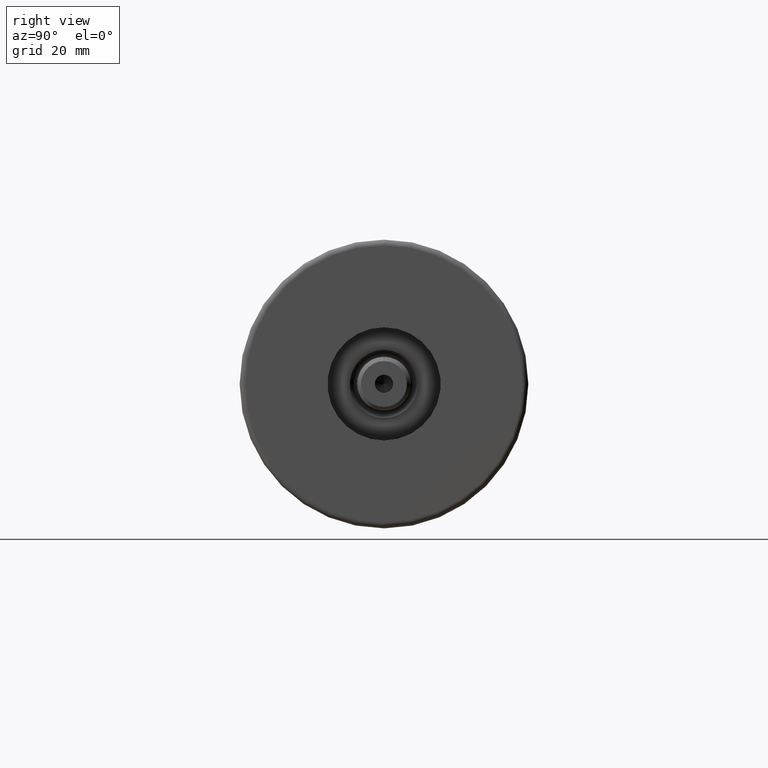
[diagram: clean part render]
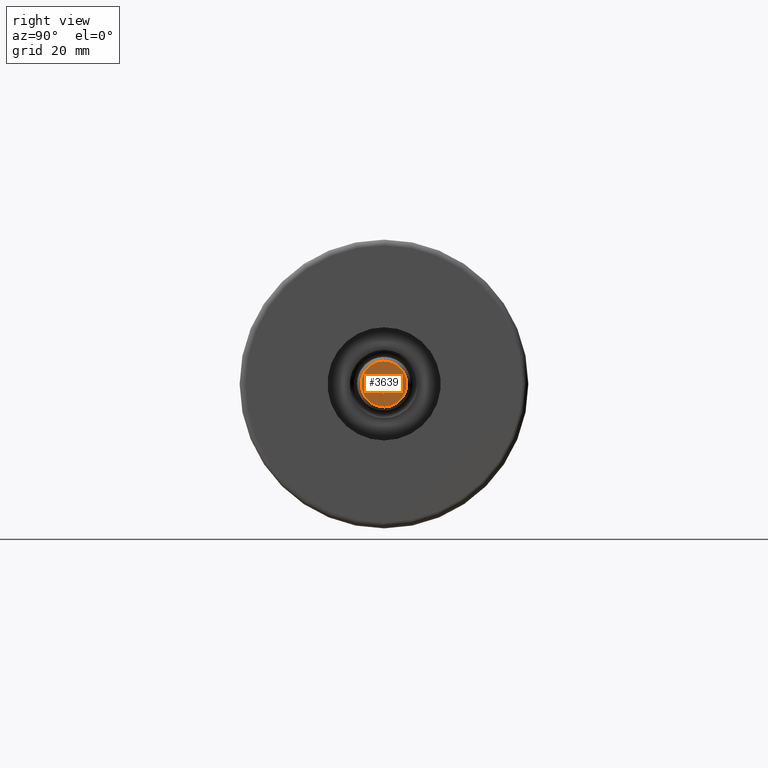
[diagram: same view with one face highlighted and labeled with its STEP entity id]
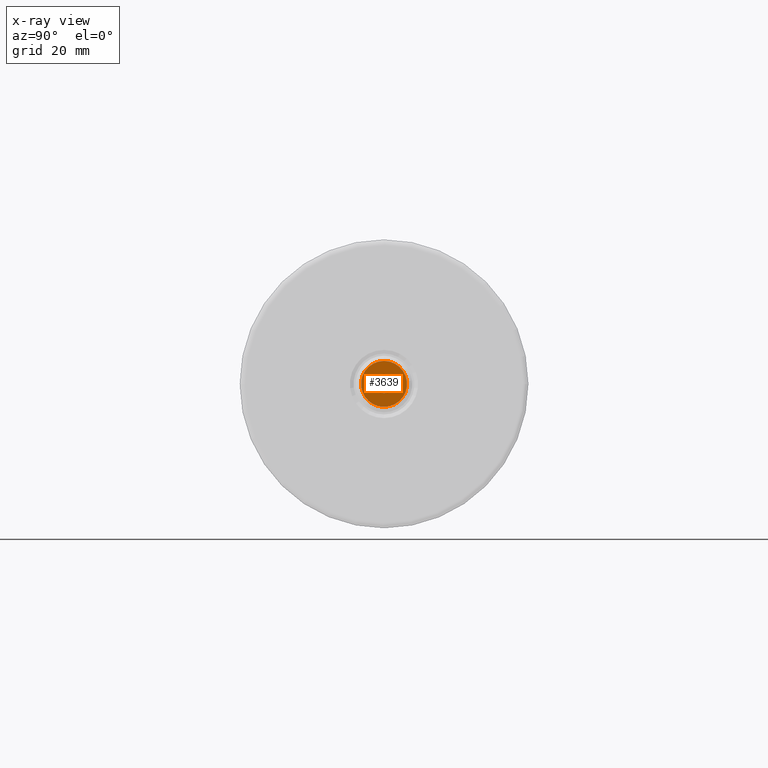
[diagram: x-ray of the same camera — body ghosted, the highlighted face saturated]
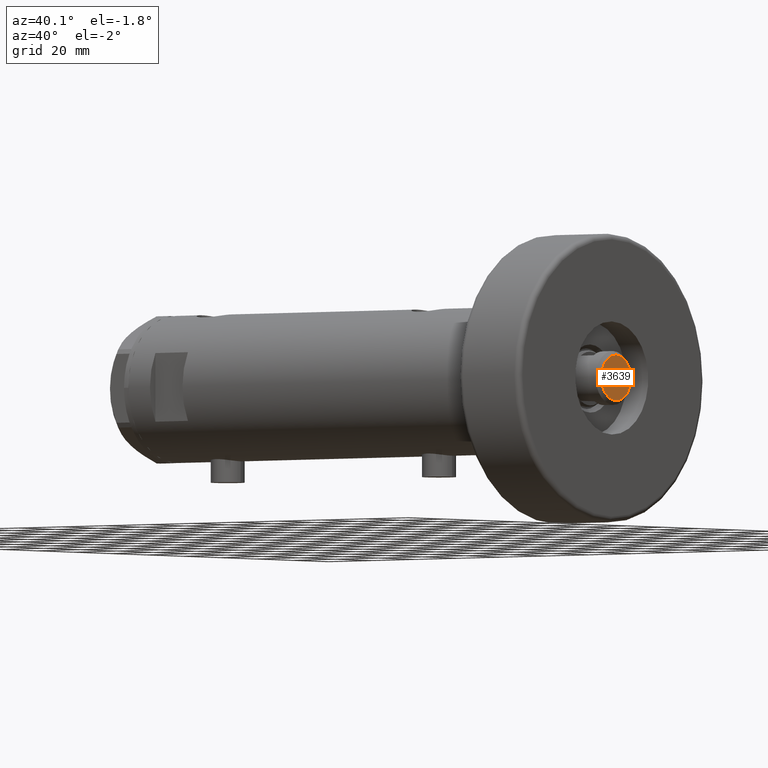
[diagram: same view with one face highlighted and labeled with its STEP entity id]
A machine part, right view. The second image highlights one B-rep face of the part: STEP entity #3639.
The next image is the same camera in x-ray: the body ghosted, the highlighted face saturated — about 0% of this face is hidden behind the body in this view.
A second angle (auxiliary view) of the same face is appended — the face is thin or edge-on in the first view.
In plain terms, the highlighted planar face has unit normal (1, 0, -0).
Its self-contained STEP definition (entity closure, byte-faithful):
#1 = VERTEX_POINT ( 'NONE', #453 ) ;
#284 = AXIS2_PLACEMENT_3D ( 'NONE', #3216, #1240, #867 ) ;
#453 = CARTESIAN_POINT ( 'NONE',  ( 3.249999999999998224, 0.000000000000000000, 179.6000000000000227 ) ) ;
#726 = CIRCLE ( 'NONE', #4025, 8.100000000000051159 ) ;
#740 = ORIENTED_EDGE ( 'NONE', *, *, #5154, .T. ) ;
#867 = DIRECTION ( 'NONE',  ( 1.000000000000000000, 0.000000000000000000, 0.000000000000000000 ) ) ;
#956 = CARTESIAN_POINT ( 'NONE',  ( 0.000000000000000000, 0.000000000000000000, 179.6000000000000227 ) ) ;
#1067 = FACE_BOUND ( 'NONE', #3705, .T. ) ;
#1075 = ORIENTED_EDGE ( 'NONE', *, *, #1794, .F. ) ;
#1240 = DIRECTION ( 'NONE',  ( -0.000000000000000000, -0.000000000000000000, 1.000000000000000000 ) ) ;
#1261 = AXIS2_PLACEMENT_3D ( 'NONE', #1669, #2078, #2501 ) ;
#1447 = CARTESIAN_POINT ( 'NONE',  ( 0.000000000000000000, 0.000000000000000000, 179.6000000000000227 ) ) ;
#1669 = CARTESIAN_POINT ( 'NONE',  ( 0.000000000000000000, 0.000000000000000000, 179.6000000000000227 ) ) ;
#1753 = CARTESIAN_POINT ( 'NONE',  ( -8.100000000000051159, 0.000000000000000000, 179.6000000000000227 ) ) ;
#1794 = EDGE_CURVE ( 'NONE', #1, #5145, #2146, .T. ) ;
#2078 = DIRECTION ( 'NONE',  ( 0.000000000000000000, 0.000000000000000000, 1.000000000000000000 ) ) ;
#2118 = CARTESIAN_POINT ( 'NONE',  ( 0.000000000000000000, 0.000000000000000000, 179.6000000000000227 ) ) ;
#2146 = CIRCLE ( 'NONE', #284, 3.249999999999998224 ) ;
#2476 = ORIENTED_EDGE ( 'NONE', *, *, #3546, .F. ) ;
#2501 = DIRECTION ( 'NONE',  ( 1.000000000000000000, 0.000000000000000000, 0.000000000000000000 ) ) ;
#2569 = DIRECTION ( 'NONE',  ( 1.000000000000000000, 0.000000000000000000, 0.000000000000000000 ) ) ;
#2756 = CIRCLE ( 'NONE', #3011, 3.249999999999998224 ) ;
#2799 = ORIENTED_EDGE ( 'NONE', *, *, #3559, .T. ) ;
#2968 = DIRECTION ( 'NONE',  ( 1.000000000000000000, 0.000000000000000000, 0.000000000000000000 ) ) ;
#3011 = AXIS2_PLACEMENT_3D ( 'NONE', #2118, #4998, #2968 ) ;
#3216 = CARTESIAN_POINT ( 'NONE',  ( 0.000000000000000000, 0.000000000000000000, 179.6000000000000227 ) ) ;
#3293 = DIRECTION ( 'NONE',  ( 0.000000000000000000, 0.000000000000000000, 1.000000000000000000 ) ) ;
#3396 = CARTESIAN_POINT ( 'NONE',  ( 8.100000000000051159, 1.077689183249673958E-15, 179.6000000000000227 ) ) ;
#3500 = VERTEX_POINT ( 'NONE', #1753 ) ;
#3546 = EDGE_CURVE ( 'NONE', #5145, #1, #2756, .T. ) ;
#3559 = EDGE_CURVE ( 'NONE', #3500, #4794, #726, .T. ) ;
#3639 = ADVANCED_FACE ( 'NONE', ( #4663, #1067 ), #3836, .T. ) ;
#3705 = EDGE_LOOP ( 'NONE', ( #1075, #2476 ) ) ;
#3836 = PLANE ( 'NONE',  #4111 ) ;
#4025 = AXIS2_PLACEMENT_3D ( 'NONE', #956, #3293, #2569 ) ;
#4093 = CARTESIAN_POINT ( 'NONE',  ( -3.249999999999998224, 3.980102097228895766E-16, 179.6000000000000227 ) ) ;
#4111 = AXIS2_PLACEMENT_3D ( 'NONE', #1447, #5054, #4243 ) ;
#4243 = DIRECTION ( 'NONE',  ( 1.000000000000000000, 0.000000000000000000, -0.000000000000000000 ) ) ;
#4663 = FACE_OUTER_BOUND ( 'NONE', #4966, .T. ) ;
#4794 = VERTEX_POINT ( 'NONE', #3396 ) ;
#4882 = CIRCLE ( 'NONE', #1261, 8.100000000000051159 ) ;
#4966 = EDGE_LOOP ( 'NONE', ( #2799, #740 ) ) ;
#4998 = DIRECTION ( 'NONE',  ( -0.000000000000000000, -0.000000000000000000, 1.000000000000000000 ) ) ;
#5054 = DIRECTION ( 'NONE',  ( 0.000000000000000000, 0.000000000000000000, 1.000000000000000000 ) ) ;
#5145 = VERTEX_POINT ( 'NONE', #4093 ) ;
#5154 = EDGE_CURVE ( 'NONE', #4794, #3500, #4882, .T. ) ;